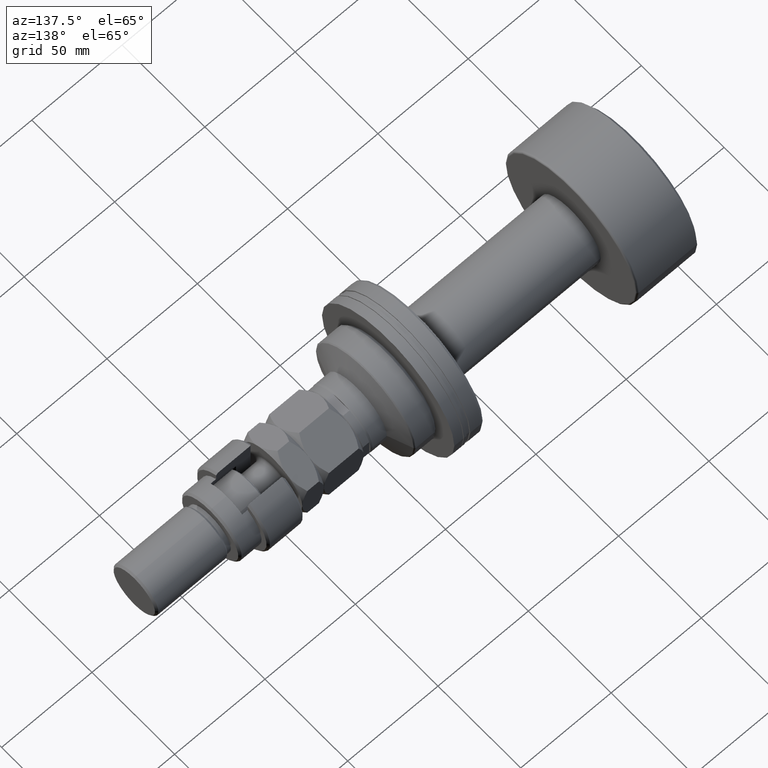
[diagram: clean part render]
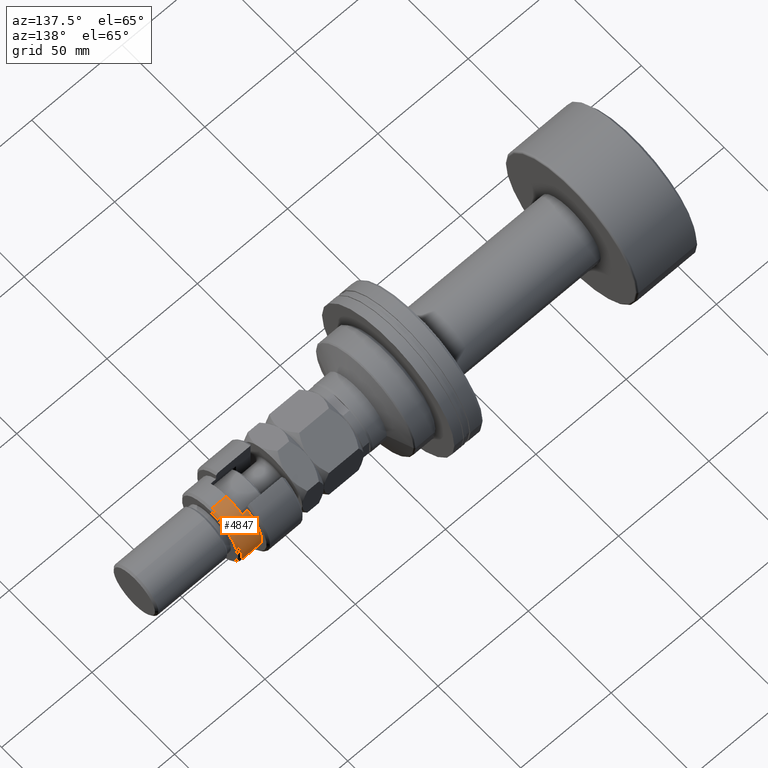
[diagram: same view with one face highlighted and labeled with its STEP entity id]
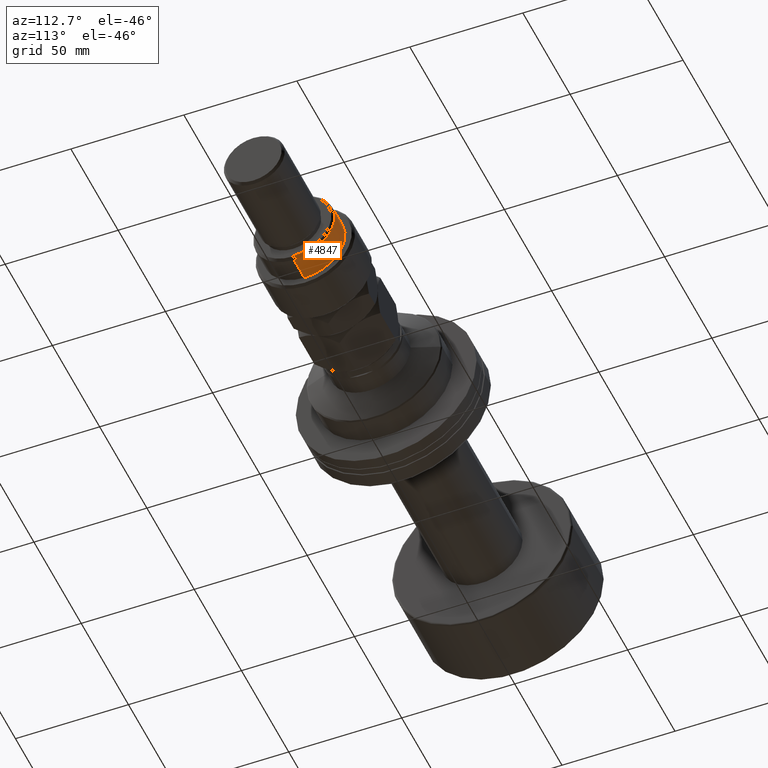
[diagram: same view with one face highlighted and labeled with its STEP entity id]
A machine part, auxiliary view. The second image highlights one B-rep face of the part: STEP entity #4847.
A second angle (auxiliary view) of the same face is appended — the face is thin or edge-on in the first view.
In plain terms, the highlighted cylindrical surface (partial cylindrical patch) has radius 18 mm, axis along (-1, -0, 0).
Its self-contained STEP definition (entity closure, byte-faithful):
#133 = VECTOR ( 'NONE', #1811, 1000.000000000000000 ) ;
#226 = ORIENTED_EDGE ( 'NONE', *, *, #3048, .T. ) ;
#233 = CARTESIAN_POINT ( 'NONE',  ( 18.00000000000000000, 2.204364238465235428E-15, 20.00000000000000000 ) ) ;
#282 = AXIS2_PLACEMENT_3D ( 'NONE', #2786, #3626, #4052 ) ;
#300 = AXIS2_PLACEMENT_3D ( 'NONE', #2700, #3523, #729 ) ;
#395 = DIRECTION ( 'NONE',  ( -1.000000000000000000, 0.000000000000000000, 0.000000000000000000 ) ) ;
#426 = CARTESIAN_POINT ( 'NONE',  ( 0.000000000000000000, 0.000000000000000000, 32.00000000000000000 ) ) ;
#448 = EDGE_CURVE ( 'NONE', #4632, #5160, #2102, .T. ) ;
#729 = DIRECTION ( 'NONE',  ( 1.000000000000000000, 0.000000000000000000, 0.000000000000000000 ) ) ;
#979 = ORIENTED_EDGE ( 'NONE', *, *, #3390, .T. ) ;
#996 = CARTESIAN_POINT ( 'NONE',  ( 0.000000000000000000, 0.000000000000000000, 23.00000000000000000 ) ) ;
#1004 = CARTESIAN_POINT ( 'NONE',  ( -18.00000000000000000, 0.000000000000000000, 32.00000000000000000 ) ) ;
#1016 = DIRECTION ( 'NONE',  ( 0.000000000000000000, 0.000000000000000000, -1.000000000000000000 ) ) ;
#1136 = CARTESIAN_POINT ( 'NONE',  ( 18.00000000000000000, 2.204364238465235428E-15, 30.99999999999999645 ) ) ;
#1301 = CIRCLE ( 'NONE', #1723, 18.00000000000000000 ) ;
#1433 = CARTESIAN_POINT ( 'NONE',  ( -18.00000000000000000, 0.000000000000000000, 30.99999999999999645 ) ) ;
#1723 = AXIS2_PLACEMENT_3D ( 'NONE', #996, #1016, #4658 ) ;
#1811 = DIRECTION ( 'NONE',  ( -0.000000000000000000, -0.000000000000000000, -1.000000000000000000 ) ) ;
#1848 = DIRECTION ( 'NONE',  ( -0.000000000000000000, -0.000000000000000000, -1.000000000000000000 ) ) ;
#1950 = LINE ( 'NONE', #1977, #3729 ) ;
#1977 = CARTESIAN_POINT ( 'NONE',  ( -15.28888485142065434, 9.500000000000000000, 32.00000000000000000 ) ) ;
#1994 = VERTEX_POINT ( 'NONE', #4352 ) ;
#2037 = ORIENTED_EDGE ( 'NONE', *, *, #2350, .F. ) ;
#2088 = EDGE_CURVE ( 'NONE', #3787, #1994, #3306, .T. ) ;
#2102 = CIRCLE ( 'NONE', #282, 18.00000000000000000 ) ;
#2262 = FACE_OUTER_BOUND ( 'NONE', #2763, .T. ) ;
#2350 = EDGE_CURVE ( 'NONE', #4632, #4225, #2984, .T. ) ;
#2563 = VERTEX_POINT ( 'NONE', #3615 ) ;
#2663 = CYLINDRICAL_SURFACE ( 'NONE', #3822, 18.00000000000000000 ) ;
#2700 = CARTESIAN_POINT ( 'NONE',  ( 0.000000000000000000, 0.000000000000000000, 20.00000000000000000 ) ) ;
#2763 = EDGE_LOOP ( 'NONE', ( #5016, #979, #4629, #226, #3991, #2037 ) ) ;
#2786 = CARTESIAN_POINT ( 'NONE',  ( 0.000000000000000000, 0.000000000000000000, 30.99999999999999645 ) ) ;
#2984 = LINE ( 'NONE', #1004, #133 ) ;
#3048 = EDGE_CURVE ( 'NONE', #1994, #2563, #1950, .T. ) ;
#3305 = VECTOR ( 'NONE', #1848, 1000.000000000000000 ) ;
#3306 = CIRCLE ( 'NONE', #300, 18.00000000000000000 ) ;
#3390 = EDGE_CURVE ( 'NONE', #5160, #3787, #3867, .T. ) ;
#3523 = DIRECTION ( 'NONE',  ( 0.000000000000000000, 0.000000000000000000, 1.000000000000000000 ) ) ;
#3615 = CARTESIAN_POINT ( 'NONE',  ( -15.28888485142065434, 9.500000000000000000, 23.00000000000000000 ) ) ;
#3626 = DIRECTION ( 'NONE',  ( 0.000000000000000000, 0.000000000000000000, -1.000000000000000000 ) ) ;
#3627 = DIRECTION ( 'NONE',  ( -0.000000000000000000, -0.000000000000000000, -1.000000000000000000 ) ) ;
#3729 = VECTOR ( 'NONE', #4462, 1000.000000000000000 ) ;
#3750 = CARTESIAN_POINT ( 'NONE',  ( -18.00000000000000000, 0.000000000000000000, 23.00000000000000000 ) ) ;
#3787 = VERTEX_POINT ( 'NONE', #233 ) ;
#3822 = AXIS2_PLACEMENT_3D ( 'NONE', #426, #3627, #395 ) ;
#3867 = LINE ( 'NONE', #4701, #3305 ) ;
#3991 = ORIENTED_EDGE ( 'NONE', *, *, #4693, .F. ) ;
#4052 = DIRECTION ( 'NONE',  ( 1.000000000000000000, 0.000000000000000000, 0.000000000000000000 ) ) ;
#4225 = VERTEX_POINT ( 'NONE', #3750 ) ;
#4352 = CARTESIAN_POINT ( 'NONE',  ( -15.28888485142065434, 9.500000000000000000, 19.99999999999999645 ) ) ;
#4462 = DIRECTION ( 'NONE',  ( 0.000000000000000000, 0.000000000000000000, 1.000000000000000000 ) ) ;
#4629 = ORIENTED_EDGE ( 'NONE', *, *, #2088, .T. ) ;
#4632 = VERTEX_POINT ( 'NONE', #1433 ) ;
#4658 = DIRECTION ( 'NONE',  ( -1.000000000000000000, 0.000000000000000000, 0.000000000000000000 ) ) ;
#4693 = EDGE_CURVE ( 'NONE', #4225, #2563, #1301, .T. ) ;
#4701 = CARTESIAN_POINT ( 'NONE',  ( 18.00000000000000000, 2.204364238465235428E-15, 32.00000000000000000 ) ) ;
#4847 = ADVANCED_FACE ( 'NONE', ( #2262 ), #2663, .T. ) ;
#5016 = ORIENTED_EDGE ( 'NONE', *, *, #448, .T. ) ;
#5160 = VERTEX_POINT ( 'NONE', #1136 ) ;